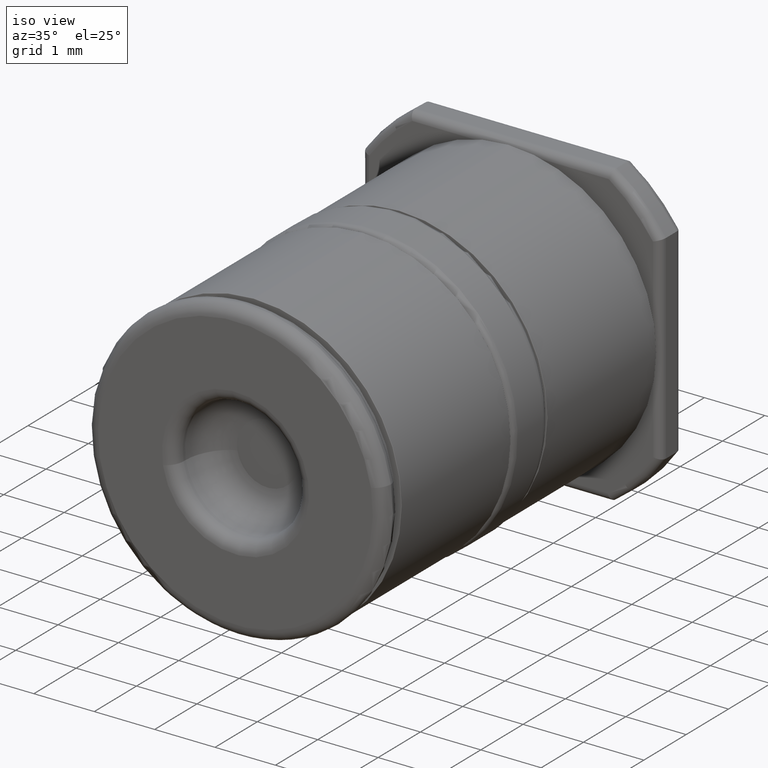
[diagram: clean part render]
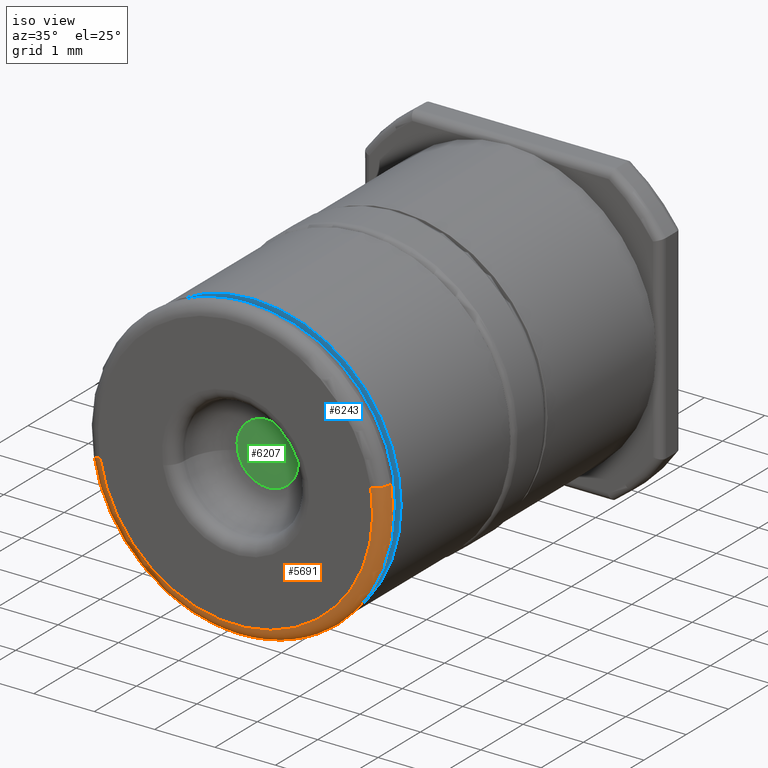
[diagram: same view with three faces highlighted in distinct colors, each labeled with its STEP entity id]
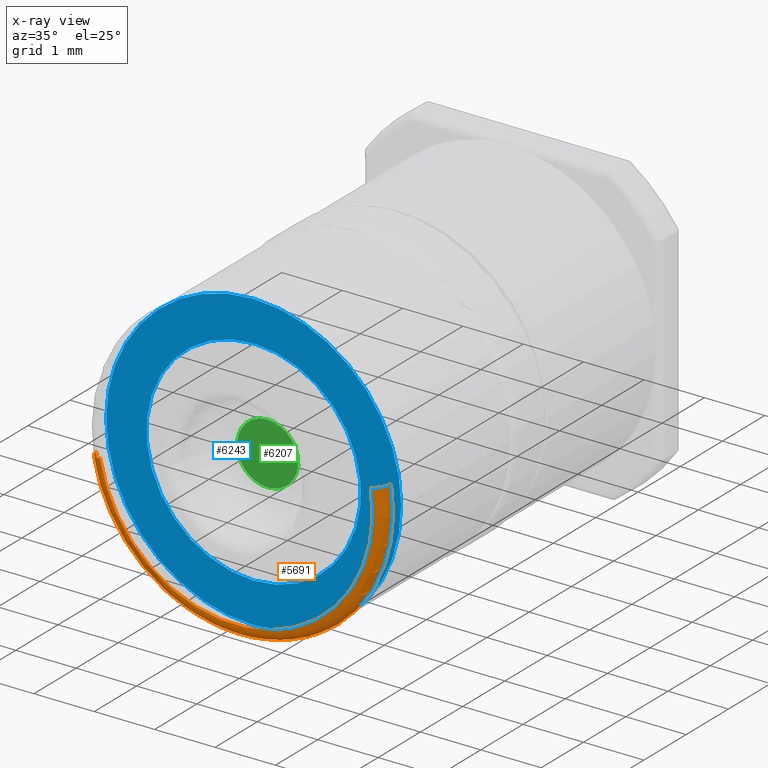
[diagram: x-ray of the same camera — body ghosted, the three highlighted faces saturated]
A machine part, iso view with three faces highlighted in distinct colors.
The next image is the same camera in x-ray (body ghosted, the three faces saturated) — at least one of them is partly hidden behind the body in this view.
Their STEP definitions:

[orange] entity #5691 — the highlighted toroidal blend (fillet) surface has major radius 2.2733 mm and minor (blend) radius 0.2032 mm.
#103 = ORIENTED_EDGE ( 'NONE', *, *, #6441, .F. ) ;
#247 = DIRECTION ( 'NONE',  ( 0.0000000000000000000, 0.0000000000000000000, 1.000000000000000000 ) ) ;
#598 = CARTESIAN_POINT ( 'NONE',  ( 1.096058885236881159E-17, 0.06899999999999999190, -0.08949999999999999623 ) ) ;
#775 = VERTEX_POINT ( 'NONE', #4191 ) ;
#994 = DIRECTION ( 'NONE',  ( 0.0000000000000000000, 0.0000000000000000000, 1.000000000000000000 ) ) ;
#1453 = CARTESIAN_POINT ( 'NONE',  ( 1.193839090874163934E-17, 0.06949999999999989519, -0.09748435971133564970 ) ) ;
#1518 = VERTEX_POINT ( 'NONE', #5394 ) ;
#1835 = CARTESIAN_POINT ( 'NONE',  ( 0.0000000000000000000, 0.06949999999999989519, 0.0000000000000000000 ) ) ;
#2030 = EDGE_CURVE ( 'NONE', #1518, #775, #3616, .T. ) ;
#2507 = AXIS2_PLACEMENT_3D ( 'NONE', #6256, #2769, #6107 ) ;
#2517 = EDGE_LOOP ( 'NONE', ( #2929, #4606, #3531, #103 ) ) ;
#2558 = AXIS2_PLACEMENT_3D ( 'NONE', #6563, #3871, #994 ) ;
#2612 = EDGE_CURVE ( 'NONE', #5776, #5268, #2800, .T. ) ;
#2769 = DIRECTION ( 'NONE',  ( -0.0000000000000000000, 1.000000000000000000, -0.0000000000000000000 ) ) ;
#2800 = CIRCLE ( 'NONE', #6545, 0.09748435971133564970 ) ;
#2929 = ORIENTED_EDGE ( 'NONE', *, *, #2612, .T. ) ;
#3323 = DIRECTION ( 'NONE',  ( -0.0000000000000000000, 1.000000000000000000, -0.0000000000000000000 ) ) ;
#3468 = CARTESIAN_POINT ( 'NONE',  ( 0.0000000000000000000, 0.06949999999999989519, 0.09748435971133564970 ) ) ;
#3531 = ORIENTED_EDGE ( 'NONE', *, *, #2030, .F. ) ;
#3616 = CIRCLE ( 'NONE', #7242, 0.08949999999999999623 ) ;
#3871 = DIRECTION ( 'NONE',  ( -1.000000000000000000, 0.0000000000000000000, 0.0000000000000000000 ) ) ;
#4170 = EDGE_CURVE ( 'NONE', #5268, #775, #6126, .T. ) ;
#4191 = CARTESIAN_POINT ( 'NONE',  ( 1.144948988055522469E-17, 0.07699999999999997125, -0.08949999999999999623 ) ) ;
#4261 = AXIS2_PLACEMENT_3D ( 'NONE', #598, #6760, #5048 ) ;
#4606 = ORIENTED_EDGE ( 'NONE', *, *, #4170, .T. ) ;
#5048 = DIRECTION ( 'NONE',  ( 1.224646799147354933E-16, 0.0000000000000000000, -1.000000000000000000 ) ) ;
#5049 = DIRECTION ( 'NONE',  ( 0.0000000000000000000, 0.0000000000000000000, 1.000000000000000000 ) ) ;
#5268 = VERTEX_POINT ( 'NONE', #1453 ) ;
#5289 = DIRECTION ( 'NONE',  ( -0.0000000000000000000, 1.000000000000000000, -0.0000000000000000000 ) ) ;
#5394 = CARTESIAN_POINT ( 'NONE',  ( 0.0000000000000000000, 0.07699999999999997125, 0.08949999999999999623 ) ) ;
#5691 = ADVANCED_FACE ( 'NONE', ( #6660 ), #6242, .T. ) ;
#5776 = VERTEX_POINT ( 'NONE', #3468 ) ;
#6102 = CARTESIAN_POINT ( 'NONE',  ( 0.0000000000000000000, 0.07699999999999997125, 0.0000000000000000000 ) ) ;
#6107 = DIRECTION ( 'NONE',  ( 0.0000000000000000000, 0.0000000000000000000, 1.000000000000000000 ) ) ;
#6126 = CIRCLE ( 'NONE', #4261, 0.007999999999999989758 ) ;
#6191 = CIRCLE ( 'NONE', #2558, 0.007999999999999989758 ) ;
#6242 = TOROIDAL_SURFACE ( 'NONE', #2507, 0.08949999999999999623, 0.007999999999999993228 ) ;
#6256 = CARTESIAN_POINT ( 'NONE',  ( 0.0000000000000000000, 0.06899999999999999190, 0.0000000000000000000 ) ) ;
#6441 = EDGE_CURVE ( 'NONE', #5776, #1518, #6191, .T. ) ;
#6545 = AXIS2_PLACEMENT_3D ( 'NONE', #1835, #5289, #247 ) ;
#6563 = CARTESIAN_POINT ( 'NONE',  ( 0.0000000000000000000, 0.06899999999999999190, 0.08949999999999999623 ) ) ;
#6660 = FACE_OUTER_BOUND ( 'NONE', #2517, .T. ) ;
#6760 = DIRECTION ( 'NONE',  ( 1.000000000000000000, 0.0000000000000000000, 1.224646799147353207E-16 ) ) ;
#7242 = AXIS2_PLACEMENT_3D ( 'NONE', #6102, #3323, #5049 ) ;

[blue] entity #6243 — the highlighted planar face has unit normal (0, 1, 0).
#166 = DIRECTION ( 'NONE',  ( 0.0000000000000000000, 0.0000000000000000000, 1.000000000000000000 ) ) ;
#261 = CARTESIAN_POINT ( 'NONE',  ( 0.0000000000000000000, 0.0000000000000000000, 0.0000000000000000000 ) ) ;
#418 = VERTEX_POINT ( 'NONE', #6744 ) ;
#428 = AXIS2_PLACEMENT_3D ( 'NONE', #6422, #1403, #5836 ) ;
#741 = EDGE_CURVE ( 'NONE', #418, #2969, #6323, .T. ) ;
#854 = AXIS2_PLACEMENT_3D ( 'NONE', #6842, #5304, #1960 ) ;
#1134 = ORIENTED_EDGE ( 'NONE', *, *, #5864, .T. ) ;
#1225 = CARTESIAN_POINT ( 'NONE',  ( 0.0000000000000000000, 0.0000000000000000000, 0.0000000000000000000 ) ) ;
#1358 = CARTESIAN_POINT ( 'NONE',  ( 0.0000000000000000000, 0.0000000000000000000, 0.0000000000000000000 ) ) ;
#1403 = DIRECTION ( 'NONE',  ( 0.0000000000000000000, 1.000000000000000000, 0.0000000000000000000 ) ) ;
#1845 = DIRECTION ( 'NONE',  ( -0.0000000000000000000, -1.000000000000000000, -0.0000000000000000000 ) ) ;
#1919 = FACE_BOUND ( 'NONE', #6815, .T. ) ;
#1960 = DIRECTION ( 'NONE',  ( 0.0000000000000000000, 0.0000000000000000000, 1.000000000000000000 ) ) ;
#2103 = EDGE_CURVE ( 'NONE', #2969, #418, #4441, .T. ) ;
#2736 = CIRCLE ( 'NONE', #854, 0.06988188976377952832 ) ;
#2965 = ORIENTED_EDGE ( 'NONE', *, *, #7165, .T. ) ;
#2969 = VERTEX_POINT ( 'NONE', #5237 ) ;
#2981 = DIRECTION ( 'NONE',  ( 0.0000000000000000000, 0.0000000000000000000, 1.000000000000000000 ) ) ;
#3169 = AXIS2_PLACEMENT_3D ( 'NONE', #1358, #6239, #5147 ) ;
#3439 = EDGE_LOOP ( 'NONE', ( #4870, #4579 ) ) ;
#3630 = CIRCLE ( 'NONE', #5732, 0.06988188976377952832 ) ;
#4093 = DIRECTION ( 'NONE',  ( 0.0000000000000000000, 1.000000000000000000, 0.0000000000000000000 ) ) ;
#4441 = CIRCLE ( 'NONE', #4670, 0.09614173228346459266 ) ;
#4579 = ORIENTED_EDGE ( 'NONE', *, *, #741, .T. ) ;
#4670 = AXIS2_PLACEMENT_3D ( 'NONE', #261, #1845, #166 ) ;
#4721 = VERTEX_POINT ( 'NONE', #5351 ) ;
#4847 = FACE_OUTER_BOUND ( 'NONE', #3439, .T. ) ;
#4870 = ORIENTED_EDGE ( 'NONE', *, *, #2103, .T. ) ;
#5024 = VERTEX_POINT ( 'NONE', #7245 ) ;
#5147 = DIRECTION ( 'NONE',  ( 0.0000000000000000000, 0.0000000000000000000, 1.000000000000000000 ) ) ;
#5237 = CARTESIAN_POINT ( 'NONE',  ( 0.0000000000000000000, 0.0000000000000000000, 0.09614173228346459266 ) ) ;
#5304 = DIRECTION ( 'NONE',  ( 0.0000000000000000000, 1.000000000000000000, 0.0000000000000000000 ) ) ;
#5351 = CARTESIAN_POINT ( 'NONE',  ( 0.0000000000000000000, 0.0000000000000000000, -0.06988188976377952832 ) ) ;
#5732 = AXIS2_PLACEMENT_3D ( 'NONE', #1225, #4093, #2981 ) ;
#5836 = DIRECTION ( 'NONE',  ( 0.0000000000000000000, -0.0000000000000000000, 1.000000000000000000 ) ) ;
#5864 = EDGE_CURVE ( 'NONE', #5024, #4721, #2736, .T. ) ;
#6239 = DIRECTION ( 'NONE',  ( -0.0000000000000000000, -1.000000000000000000, -0.0000000000000000000 ) ) ;
#6243 = ADVANCED_FACE ( 'NONE', ( #4847, #1919 ), #6454, .F. ) ;
#6323 = CIRCLE ( 'NONE', #3169, 0.09614173228346459266 ) ;
#6422 = CARTESIAN_POINT ( 'NONE',  ( 0.0000000000000000000, 0.0000000000000000000, 0.0000000000000000000 ) ) ;
#6454 = PLANE ( 'NONE',  #428 ) ;
#6744 = CARTESIAN_POINT ( 'NONE',  ( 1.179325224690719154E-17, 0.0000000000000000000, -0.09614173228346459266 ) ) ;
#6815 = EDGE_LOOP ( 'NONE', ( #2965, #1134 ) ) ;
#6842 = CARTESIAN_POINT ( 'NONE',  ( 0.0000000000000000000, 0.0000000000000000000, 0.0000000000000000000 ) ) ;
#7165 = EDGE_CURVE ( 'NONE', #4721, #5024, #3630, .T. ) ;
#7245 = CARTESIAN_POINT ( 'NONE',  ( 8.558063261758078648E-18, 0.0000000000000000000, 0.06988188976377952832 ) ) ;

[green] entity #6207 — the highlighted planar face has unit normal (0, -1, 0).
#192 = ORIENTED_EDGE ( 'NONE', *, *, #2177, .T. ) ;
#314 = AXIS2_PLACEMENT_3D ( 'NONE', #4267, #4167, #4809 ) ;
#490 = DIRECTION ( 'NONE',  ( 0.0000000000000000000, 0.0000000000000000000, 1.000000000000000000 ) ) ;
#1015 = CARTESIAN_POINT ( 'NONE',  ( 0.0000000000000000000, 0.04699999999999998623, 0.0000000000000000000 ) ) ;
#1478 = FACE_OUTER_BOUND ( 'NONE', #6657, .T. ) ;
#2027 = PLANE ( 'NONE',  #314 ) ;
#2177 = EDGE_CURVE ( 'NONE', #2813, #5399, #3025, .T. ) ;
#2191 = DIRECTION ( 'NONE',  ( -0.0000000000000000000, 1.000000000000000000, -0.0000000000000000000 ) ) ;
#2813 = VERTEX_POINT ( 'NONE', #4253 ) ;
#3025 = CIRCLE ( 'NONE', #5030, 0.01999999999999998654 ) ;
#3574 = CARTESIAN_POINT ( 'NONE',  ( 0.0000000000000000000, 0.04699999999999998623, 0.0000000000000000000 ) ) ;
#4167 = DIRECTION ( 'NONE',  ( -0.0000000000000000000, 1.000000000000000000, 0.0000000000000000000 ) ) ;
#4253 = CARTESIAN_POINT ( 'NONE',  ( 3.673940397442058420E-18, 0.04699999999999998623, -0.01999999999999998654 ) ) ;
#4267 = CARTESIAN_POINT ( 'NONE',  ( 0.0000000000000000000, 0.04699999999999998623, 0.0000000000000000000 ) ) ;
#4302 = ORIENTED_EDGE ( 'NONE', *, *, #4855, .T. ) ;
#4605 = DIRECTION ( 'NONE',  ( -0.0000000000000000000, 1.000000000000000000, -0.0000000000000000000 ) ) ;
#4809 = DIRECTION ( 'NONE',  ( 0.0000000000000000000, 0.0000000000000000000, 1.000000000000000000 ) ) ;
#4855 = EDGE_CURVE ( 'NONE', #5399, #2813, #5188, .T. ) ;
#5030 = AXIS2_PLACEMENT_3D ( 'NONE', #3574, #4605, #5771 ) ;
#5084 = AXIS2_PLACEMENT_3D ( 'NONE', #1015, #2191, #490 ) ;
#5188 = CIRCLE ( 'NONE', #5084, 0.01999999999999998654 ) ;
#5399 = VERTEX_POINT ( 'NONE', #6138 ) ;
#5771 = DIRECTION ( 'NONE',  ( 0.0000000000000000000, 0.0000000000000000000, 1.000000000000000000 ) ) ;
#6138 = CARTESIAN_POINT ( 'NONE',  ( 0.0000000000000000000, 0.04699999999999998623, 0.01999999999999998654 ) ) ;
#6207 = ADVANCED_FACE ( 'NONE', ( #1478 ), #2027, .T. ) ;
#6657 = EDGE_LOOP ( 'NONE', ( #4302, #192 ) ) ;